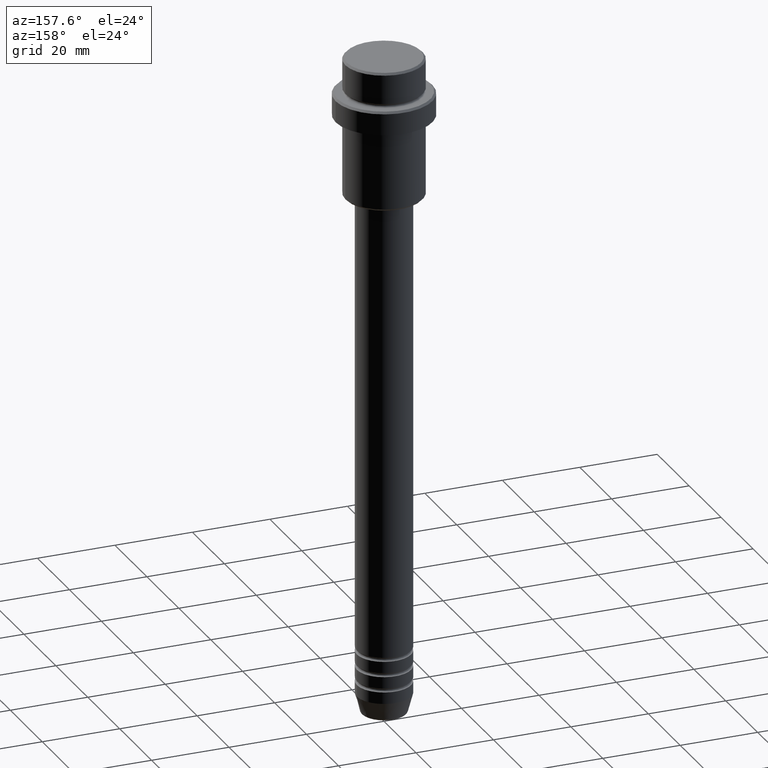
[diagram: clean part render]
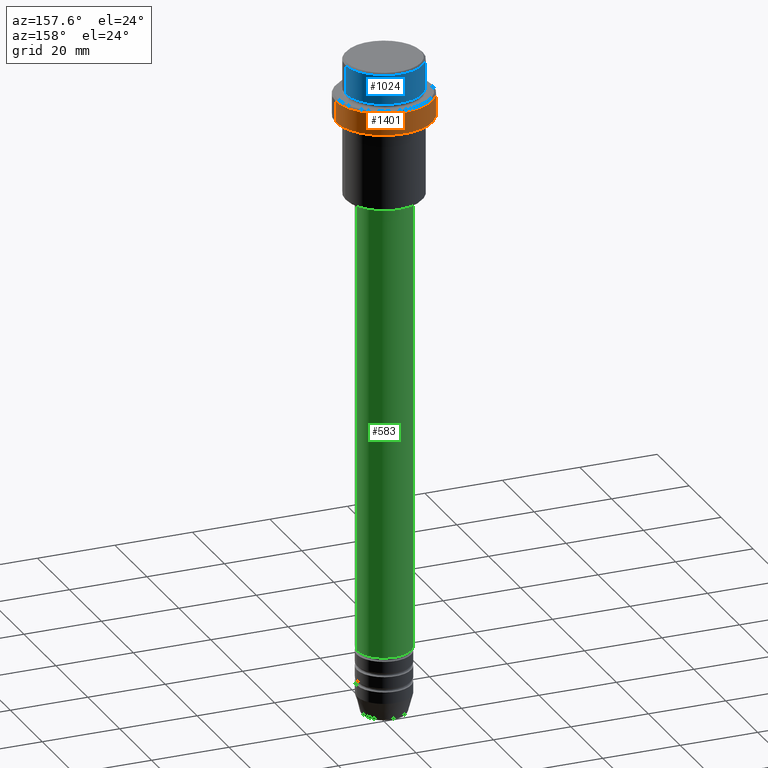
[diagram: same view with three faces highlighted in distinct colors, each labeled with its STEP entity id]
A machine part, auxiliary view with three faces highlighted in distinct colors.
Their STEP definitions:

[orange] entity #1401 — the highlighted cylindrical surface (partial cylindrical patch) has radius 12.5 mm, axis along (-0, -0, 1).
#10 = CARTESIAN_POINT ( 'NONE',  ( 0.000000000000000000, 0.000000000000000000, -9.500000000000007105 ) ) ;
#26 = CARTESIAN_POINT ( 'NONE',  ( -12.50000000000000000, 1.530808498934191521E-15, 0.000000000000000000 ) ) ;
#45 = AXIS2_PLACEMENT_3D ( 'NONE', #750, #1187, #1194 ) ;
#194 = DIRECTION ( 'NONE',  ( -0.000000000000000000, -0.000000000000000000, 1.000000000000000000 ) ) ;
#209 = DIRECTION ( 'NONE',  ( 1.000000000000000000, 0.000000000000000000, 0.000000000000000000 ) ) ;
#214 = EDGE_CURVE ( 'NONE', #1028, #874, #1333, .T. ) ;
#265 = ORIENTED_EDGE ( 'NONE', *, *, #446, .T. ) ;
#287 = CIRCLE ( 'NONE', #1097, 12.50000000000000000 ) ;
#309 = CYLINDRICAL_SURFACE ( 'NONE', #45, 12.50000000000000000 ) ;
#326 = VERTEX_POINT ( 'NONE', #1168 ) ;
#354 = EDGE_CURVE ( 'NONE', #676, #326, #399, .T. ) ;
#399 = LINE ( 'NONE', #1250, #951 ) ;
#446 = EDGE_CURVE ( 'NONE', #676, #1028, #287, .T. ) ;
#503 = CARTESIAN_POINT ( 'NONE',  ( -12.50000000000000000, 1.530808498934191521E-15, -9.500000000000007105 ) ) ;
#592 = AXIS2_PLACEMENT_3D ( 'NONE', #10, #1216, #1007 ) ;
#643 = CARTESIAN_POINT ( 'NONE',  ( -12.50000000000000000, 1.530808498934191521E-15, -15.00000000000000178 ) ) ;
#671 = CARTESIAN_POINT ( 'NONE',  ( 12.50000000000000000, 0.000000000000000000, -15.00000000000000178 ) ) ;
#676 = VERTEX_POINT ( 'NONE', #671 ) ;
#724 = VECTOR ( 'NONE', #1110, 1000.000000000000000 ) ;
#750 = CARTESIAN_POINT ( 'NONE',  ( 0.000000000000000000, 0.000000000000000000, 0.000000000000000000 ) ) ;
#873 = CARTESIAN_POINT ( 'NONE',  ( 0.000000000000000000, 0.000000000000000000, -15.00000000000000178 ) ) ;
#874 = VERTEX_POINT ( 'NONE', #503 ) ;
#940 = DIRECTION ( 'NONE',  ( -0.000000000000000000, -0.000000000000000000, 1.000000000000000000 ) ) ;
#951 = VECTOR ( 'NONE', #940, 1000.000000000000000 ) ;
#1007 = DIRECTION ( 'NONE',  ( 1.000000000000000000, 0.000000000000000000, 0.000000000000000000 ) ) ;
#1028 = VERTEX_POINT ( 'NONE', #643 ) ;
#1097 = AXIS2_PLACEMENT_3D ( 'NONE', #873, #194, #209 ) ;
#1107 = ORIENTED_EDGE ( 'NONE', *, *, #1414, .T. ) ;
#1110 = DIRECTION ( 'NONE',  ( -0.000000000000000000, -0.000000000000000000, 1.000000000000000000 ) ) ;
#1168 = CARTESIAN_POINT ( 'NONE',  ( 12.50000000000000000, 0.000000000000000000, -9.500000000000007105 ) ) ;
#1187 = DIRECTION ( 'NONE',  ( -0.000000000000000000, -0.000000000000000000, 1.000000000000000000 ) ) ;
#1194 = DIRECTION ( 'NONE',  ( 1.000000000000000000, 0.000000000000000000, 0.000000000000000000 ) ) ;
#1208 = ORIENTED_EDGE ( 'NONE', *, *, #354, .F. ) ;
#1216 = DIRECTION ( 'NONE',  ( 0.000000000000000000, 0.000000000000000000, -1.000000000000000000 ) ) ;
#1250 = CARTESIAN_POINT ( 'NONE',  ( 12.50000000000000000, 0.000000000000000000, 0.000000000000000000 ) ) ;
#1262 = EDGE_LOOP ( 'NONE', ( #265, #1316, #1107, #1208 ) ) ;
#1288 = FACE_OUTER_BOUND ( 'NONE', #1262, .T. ) ;
#1316 = ORIENTED_EDGE ( 'NONE', *, *, #214, .T. ) ;
#1333 = LINE ( 'NONE', #26, #724 ) ;
#1386 = CIRCLE ( 'NONE', #592, 12.50000000000000000 ) ;
#1401 = ADVANCED_FACE ( 'NONE', ( #1288 ), #309, .T. ) ;
#1414 = EDGE_CURVE ( 'NONE', #874, #326, #1386, .T. ) ;

[blue] entity #1024 — the highlighted cylindrical surface (partial cylindrical patch) has radius 10 mm, axis along (-0, -0, 1).
#3 = CARTESIAN_POINT ( 'NONE',  ( 9.999999999999998224, 0.000000000000000000, 0.000000000000000000 ) ) ;
#145 = LINE ( 'NONE', #3, #1282 ) ;
#168 = ORIENTED_EDGE ( 'NONE', *, *, #1327, .T. ) ;
#191 = CARTESIAN_POINT ( 'NONE',  ( 0.000000000000000000, 0.000000000000000000, -7.999999999999998224 ) ) ;
#193 = CARTESIAN_POINT ( 'NONE',  ( -9.999999999999998224, 1.224646799147353059E-15, -0.5000000000000108802 ) ) ;
#199 = DIRECTION ( 'NONE',  ( -0.000000000000000000, -0.000000000000000000, 1.000000000000000000 ) ) ;
#207 = DIRECTION ( 'NONE',  ( 1.000000000000000000, 0.000000000000000000, 0.000000000000000000 ) ) ;
#274 = EDGE_CURVE ( 'NONE', #371, #1196, #145, .T. ) ;
#283 = DIRECTION ( 'NONE',  ( -0.000000000000000000, -0.000000000000000000, 1.000000000000000000 ) ) ;
#318 = EDGE_CURVE ( 'NONE', #1026, #1196, #590, .T. ) ;
#358 = DIRECTION ( 'NONE',  ( -0.000000000000000000, -0.000000000000000000, 1.000000000000000000 ) ) ;
#370 = ORIENTED_EDGE ( 'NONE', *, *, #274, .F. ) ;
#371 = VERTEX_POINT ( 'NONE', #1276 ) ;
#413 = CARTESIAN_POINT ( 'NONE',  ( 0.000000000000000000, 0.000000000000000000, 0.000000000000000000 ) ) ;
#499 = CARTESIAN_POINT ( 'NONE',  ( 0.000000000000000000, 0.000000000000000000, -0.5000000000000108802 ) ) ;
#525 = DIRECTION ( 'NONE',  ( 1.000000000000000000, 0.000000000000000000, 0.000000000000000000 ) ) ;
#544 = CARTESIAN_POINT ( 'NONE',  ( -9.999999999999998224, 1.224646799147353059E-15, 0.000000000000000000 ) ) ;
#573 = CARTESIAN_POINT ( 'NONE',  ( -9.999999999999998224, 1.224646799147353059E-15, -7.999999999999998224 ) ) ;
#590 = CIRCLE ( 'NONE', #993, 9.999999999999998224 ) ;
#644 = EDGE_CURVE ( 'NONE', #1163, #1026, #797, .T. ) ;
#659 = AXIS2_PLACEMENT_3D ( 'NONE', #191, #199, #525 ) ;
#761 = FACE_OUTER_BOUND ( 'NONE', #1228, .T. ) ;
#780 = AXIS2_PLACEMENT_3D ( 'NONE', #413, #866, #207 ) ;
#797 = LINE ( 'NONE', #544, #876 ) ;
#801 = ORIENTED_EDGE ( 'NONE', *, *, #644, .T. ) ;
#866 = DIRECTION ( 'NONE',  ( -0.000000000000000000, -0.000000000000000000, 1.000000000000000000 ) ) ;
#876 = VECTOR ( 'NONE', #358, 1000.000000000000000 ) ;
#954 = DIRECTION ( 'NONE',  ( 0.000000000000000000, 0.000000000000000000, -1.000000000000000000 ) ) ;
#992 = CIRCLE ( 'NONE', #659, 9.999999999999998224 ) ;
#993 = AXIS2_PLACEMENT_3D ( 'NONE', #499, #954, #1048 ) ;
#1024 = ADVANCED_FACE ( 'NONE', ( #761 ), #1191, .T. ) ;
#1026 = VERTEX_POINT ( 'NONE', #193 ) ;
#1048 = DIRECTION ( 'NONE',  ( 1.000000000000000000, 0.000000000000000000, 0.000000000000000000 ) ) ;
#1163 = VERTEX_POINT ( 'NONE', #573 ) ;
#1191 = CYLINDRICAL_SURFACE ( 'NONE', #780, 9.999999999999998224 ) ;
#1196 = VERTEX_POINT ( 'NONE', #1352 ) ;
#1228 = EDGE_LOOP ( 'NONE', ( #168, #801, #1387, #370 ) ) ;
#1276 = CARTESIAN_POINT ( 'NONE',  ( 9.999999999999998224, 0.000000000000000000, -7.999999999999998224 ) ) ;
#1282 = VECTOR ( 'NONE', #283, 1000.000000000000000 ) ;
#1327 = EDGE_CURVE ( 'NONE', #371, #1163, #992, .T. ) ;
#1352 = CARTESIAN_POINT ( 'NONE',  ( 9.999999999999998224, 0.000000000000000000, -0.5000000000000108802 ) ) ;
#1387 = ORIENTED_EDGE ( 'NONE', *, *, #318, .T. ) ;

[green] entity #583 — the highlighted cylindrical surface (edge-blend (fillet) strip) has radius 7 mm, axis along (-0, -0, 1).
#8 = CARTESIAN_POINT ( 'NONE',  ( 7.000000000000000000, 0.000000000000000000, -37.00000000000000000 ) ) ;
#106 = AXIS2_PLACEMENT_3D ( 'NONE', #1211, #124, #441 ) ;
#124 = DIRECTION ( 'NONE',  ( -0.000000000000000000, -0.000000000000000000, 1.000000000000000000 ) ) ;
#138 = DIRECTION ( 'NONE',  ( -0.000000000000000000, -0.000000000000000000, 1.000000000000000000 ) ) ;
#153 = AXIS2_PLACEMENT_3D ( 'NONE', #1311, #138, #895 ) ;
#232 = EDGE_LOOP ( 'NONE', ( #892, #757, #572, #1027 ) ) ;
#278 = CARTESIAN_POINT ( 'NONE',  ( -7.000000000000000000, 8.572527594031473190E-16, -37.00000000000000000 ) ) ;
#322 = VERTEX_POINT ( 'NONE', #278 ) ;
#352 = FACE_OUTER_BOUND ( 'NONE', #232, .T. ) ;
#398 = CARTESIAN_POINT ( 'NONE',  ( 7.000000000000000000, 0.000000000000000000, 0.000000000000000000 ) ) ;
#417 = DIRECTION ( 'NONE',  ( -0.000000000000000000, -0.000000000000000000, 1.000000000000000000 ) ) ;
#441 = DIRECTION ( 'NONE',  ( 1.000000000000000000, 0.000000000000000000, 0.000000000000000000 ) ) ;
#495 = CARTESIAN_POINT ( 'NONE',  ( 7.000000000000000000, 0.000000000000000000, -153.9999999999998863 ) ) ;
#572 = ORIENTED_EDGE ( 'NONE', *, *, #867, .F. ) ;
#583 = ADVANCED_FACE ( 'NONE', ( #352 ), #1325, .T. ) ;
#603 = VERTEX_POINT ( 'NONE', #8 ) ;
#609 = DIRECTION ( 'NONE',  ( 1.000000000000000000, 0.000000000000000000, 0.000000000000000000 ) ) ;
#707 = VECTOR ( 'NONE', #1046, 1000.000000000000000 ) ;
#711 = VERTEX_POINT ( 'NONE', #1013 ) ;
#755 = CIRCLE ( 'NONE', #153, 7.000000000000000000 ) ;
#757 = ORIENTED_EDGE ( 'NONE', *, *, #1249, .T. ) ;
#834 = VERTEX_POINT ( 'NONE', #495 ) ;
#867 = EDGE_CURVE ( 'NONE', #603, #322, #1317, .T. ) ;
#892 = ORIENTED_EDGE ( 'NONE', *, *, #1157, .T. ) ;
#895 = DIRECTION ( 'NONE',  ( 1.000000000000000000, 0.000000000000000000, 0.000000000000000000 ) ) ;
#934 = LINE ( 'NONE', #1253, #707 ) ;
#955 = EDGE_CURVE ( 'NONE', #834, #603, #1394, .T. ) ;
#1013 = CARTESIAN_POINT ( 'NONE',  ( -7.000000000000000000, 8.572527594031473190E-16, -153.9999999999998863 ) ) ;
#1027 = ORIENTED_EDGE ( 'NONE', *, *, #955, .F. ) ;
#1046 = DIRECTION ( 'NONE',  ( -0.000000000000000000, -0.000000000000000000, 1.000000000000000000 ) ) ;
#1157 = EDGE_CURVE ( 'NONE', #834, #711, #755, .T. ) ;
#1166 = DIRECTION ( 'NONE',  ( -0.000000000000000000, -0.000000000000000000, 1.000000000000000000 ) ) ;
#1211 = CARTESIAN_POINT ( 'NONE',  ( 0.000000000000000000, 0.000000000000000000, 0.000000000000000000 ) ) ;
#1234 = AXIS2_PLACEMENT_3D ( 'NONE', #1270, #1166, #609 ) ;
#1249 = EDGE_CURVE ( 'NONE', #711, #322, #934, .T. ) ;
#1253 = CARTESIAN_POINT ( 'NONE',  ( -7.000000000000000000, 8.572527594031473190E-16, 0.000000000000000000 ) ) ;
#1270 = CARTESIAN_POINT ( 'NONE',  ( 0.000000000000000000, 0.000000000000000000, -37.00000000000000000 ) ) ;
#1311 = CARTESIAN_POINT ( 'NONE',  ( 0.000000000000000000, 0.000000000000000000, -153.9999999999998863 ) ) ;
#1317 = CIRCLE ( 'NONE', #1234, 7.000000000000000000 ) ;
#1325 = CYLINDRICAL_SURFACE ( 'NONE', #106, 7.000000000000000000 ) ;
#1382 = VECTOR ( 'NONE', #417, 1000.000000000000000 ) ;
#1394 = LINE ( 'NONE', #398, #1382 ) ;